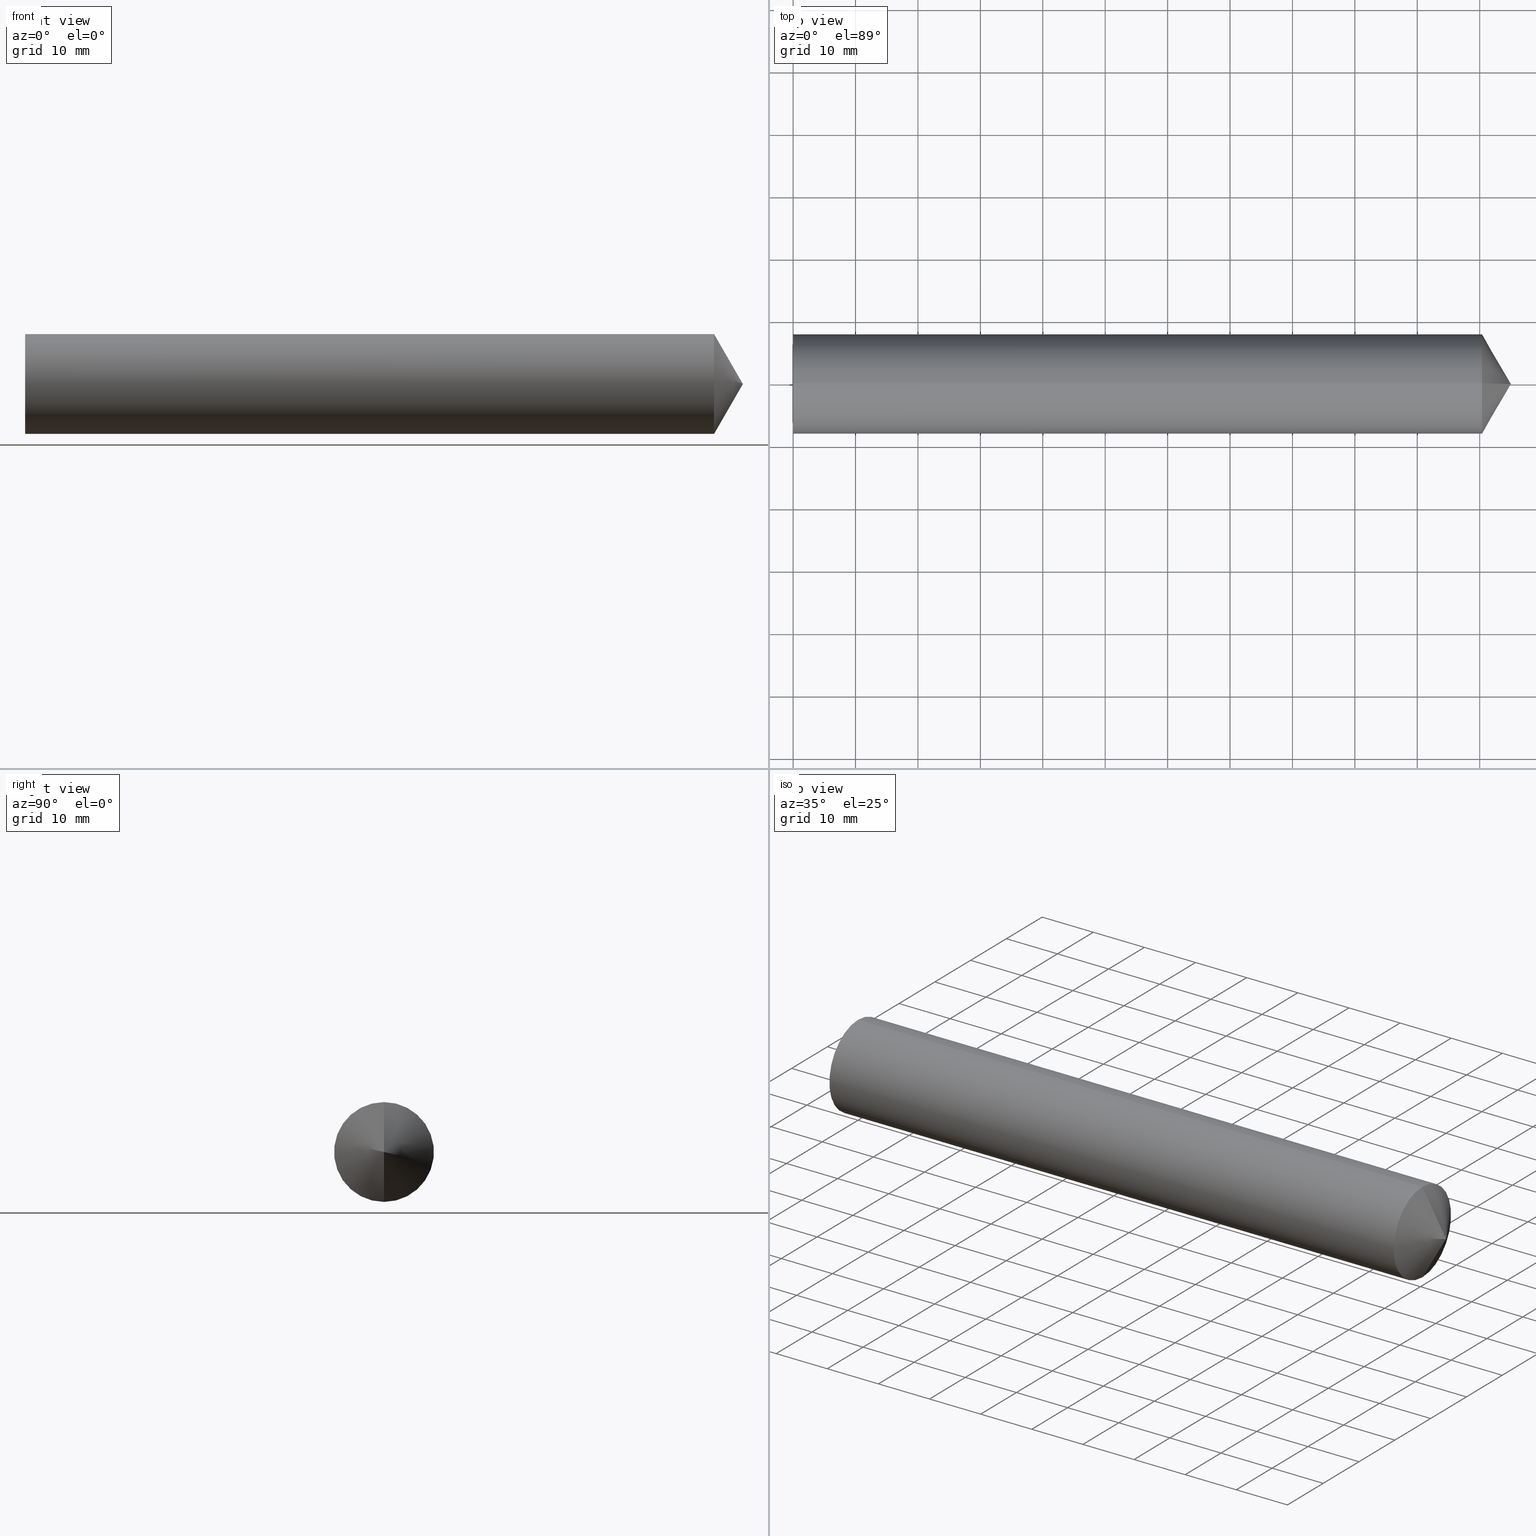
[diagram: canonical four-view strip — front | top / right | iso, engineering-drawing reading convention]
A machine part, canonical four-view strip (front | top / right | iso — engineering-drawing reading convention). The complete STEP part file that produces these views, byte-faithful:
ISO-10303-21;
HEADER;
FILE_DESCRIPTION (( 'STEP AP214' ),
    '1' );
FILE_NAME ('14426818.STEP',
    '2022-10-25T06:39:05',
    ( '' ),
    ( '' ),
    'SwSTEP 2.0',
    'SolidWorks 2017',
    '' );
FILE_SCHEMA (( 'AUTOMOTIVE_DESIGN' ));
ENDSEC;

DATA;
#1 = PRESENTATION_STYLE_ASSIGNMENT (( #145 ) ) ;
#2 = EDGE_CURVE ( 'NONE', #34, #6, #116, .T. ) ;
#3 = CARTESIAN_POINT ( 'NONE',  ( 0.0000000000000000000, 0.0000000000000000000, 0.0000000000000000000 ) ) ;
#4 = EDGE_CURVE ( 'NONE', #6, #164, #147, .T. ) ;
#5 = DIRECTION ( 'NONE',  ( 0.0000000000000000000, 0.0000000000000000000, 1.000000000000000000 ) ) ;
#6 = VERTEX_POINT ( 'NONE', #121 ) ;
#7 = DIRECTION ( 'NONE',  ( -1.000000000000000000, 0.0000000000000000000, -0.0000000000000000000 ) ) ;
#8 = APPLICATION_PROTOCOL_DEFINITION ( 'draft international standard', 'automotive_design', 1998, #162 ) ;
#9 = AXIS2_PLACEMENT_3D ( 'NONE', #87, #90, #63 ) ;
#10 = VECTOR ( 'NONE', #40, 1000.000000000000000 ) ;
#11 = EDGE_CURVE ( 'NONE', #48, #57, #79, .T. ) ;
#12 = CARTESIAN_POINT ( 'NONE',  ( 115.0000000000000100, -6.938893903907228400E-015, 0.0000000000000000000 ) ) ;
#13 = EDGE_CURVE ( 'NONE', #48, #34, #163, .T. ) ;
#14 = DIRECTION ( 'NONE',  ( 0.0000000000000000000, 0.0000000000000000000, 1.000000000000000000 ) ) ;
#15 = FACE_OUTER_BOUND ( 'NONE', #119, .T. ) ;
#16 = AXIS2_PLACEMENT_3D ( 'NONE', #80, #92, #5 ) ;
#17 = DIRECTION ( 'NONE',  ( -1.000000000000000000, -0.0000000000000000000, -0.0000000000000000000 ) ) ;
#18 =( NAMED_UNIT ( * ) SI_UNIT ( $, .STERADIAN. ) SOLID_ANGLE_UNIT ( ) );
#19 = EDGE_LOOP ( 'NONE', ( #157, #150, #140 ) ) ;
#20 =( LENGTH_UNIT ( ) NAMED_UNIT ( * ) SI_UNIT ( .MILLI., .METRE. ) );
#21 =( NAMED_UNIT ( * ) SI_UNIT ( $, .STERADIAN. ) SOLID_ANGLE_UNIT ( ) );
#22 = VECTOR ( 'NONE', #143, 1000.000000000000000 ) ;
#23 = CIRCLE ( 'NONE', #158, 8.000000000000000000 ) ;
#24 = EDGE_CURVE ( 'NONE', #164, #6, #23, .T. ) ;
#25 = ORIENTED_EDGE ( 'NONE', *, *, #59, .T. ) ;
#26 = CARTESIAN_POINT ( 'NONE',  ( -10.60077346251142700, 9.797174393178825700E-016, -8.000000000000000000 ) ) ;
#27 = CARTESIAN_POINT ( 'NONE',  ( 0.0000000000000000000, 0.0000000000000000000, 0.0000000000000000000 ) ) ;
#28 = ORIENTED_EDGE ( 'NONE', *, *, #29, .T. ) ;
#29 = EDGE_CURVE ( 'NONE', #57, #34, #138, .T. ) ;
#30 =( NAMED_UNIT ( * ) PLANE_ANGLE_UNIT ( ) SI_UNIT ( $, .RADIAN. ) );
#31 = DIRECTION ( 'NONE',  ( -1.000000000000000000, -0.0000000000000000000, -0.0000000000000000000 ) ) ;
#32 = PRODUCT ( '14426818', '14426818', '', ( #148 ) ) ;
#33 = FACE_OUTER_BOUND ( 'NONE', #19, .T. ) ;
#34 = VERTEX_POINT ( 'NONE', #142 ) ;
#35 = AXIS2_PLACEMENT_3D ( 'NONE', #132, #133, #107 ) ;
#36 = ORIENTED_EDGE ( 'NONE', *, *, #4, .F. ) ;
#37 = CARTESIAN_POINT ( 'NONE',  ( 110.3811978464830200, 9.797174393178825700E-016, -8.000000000000000000 ) ) ;
#38 = STYLED_ITEM ( 'NONE', ( #1 ), #120 ) ;
#39 = SHAPE_DEFINITION_REPRESENTATION ( #114, #120 ) ;
#40 = DIRECTION ( 'NONE',  ( -0.4999999999999995000, 0.0000000000000000000, 0.8660254037844389300 ) ) ;
#41 = DIRECTION ( 'NONE',  ( 0.0000000000000000000, 0.0000000000000000000, 1.000000000000000000 ) ) ;
#42 = CARTESIAN_POINT ( 'NONE',  ( -10.60077346251142700, 0.0000000000000000000, 0.0000000000000000000 ) ) ;
#43 = CONICAL_SURFACE ( 'NONE', #35, 8.000000000000000000, 1.047197551196598300 ) ;
#44 = CARTESIAN_POINT ( 'NONE',  ( 0.0000000000000000000, 0.0000000000000000000, 0.0000000000000000000 ) ) ;
#45 = AXIS2_PLACEMENT_3D ( 'NONE', #111, #17, #41 ) ;
#46 = ORIENTED_EDGE ( 'NONE', *, *, #24, .F. ) ;
#47 = PRODUCT_DEFINITION_FORMATION_WITH_SPECIFIED_SOURCE ( 'ANY', '', #32, .NOT_KNOWN. ) ;
#48 = VERTEX_POINT ( 'NONE', #12 ) ;
#49 = CARTESIAN_POINT ( 'NONE',  ( 110.3811978464830200, 9.797174393178825700E-016, -8.000000000000000000 ) ) ;
#50 = UNCERTAINTY_MEASURE_WITH_UNIT (LENGTH_MEASURE( 1.000000000000000100E-005 ), #20, 'distance_accuracy_value', 'NONE');
#51 = APPLICATION_PROTOCOL_DEFINITION ( 'draft international standard', 'automotive_design', 1998, #68 ) ;
#52 = ORIENTED_EDGE ( 'NONE', *, *, #11, .F. ) ;
#53 = PRESENTATION_LAYER_ASSIGNMENT (  '', '', ( #115 ) ) ;
#54 = DIRECTION ( 'NONE',  ( 1.000000000000000000, 0.0000000000000000000, 0.0000000000000000000 ) ) ;
#55 = CARTESIAN_POINT ( 'NONE',  ( 110.3811978464830200, 0.0000000000000000000, 0.0000000000000000000 ) ) ;
#56 = EDGE_LOOP ( 'NONE', ( #103, #28, #98, #46 ) ) ;
#57 = VERTEX_POINT ( 'NONE', #37 ) ;
#58 = ORIENTED_EDGE ( 'NONE', *, *, #2, .F. ) ;
#59 = EDGE_CURVE ( 'NONE', #57, #164, #129, .T. ) ;
#60 = SURFACE_STYLE_FILL_AREA ( #137 ) ;
#61 = DIRECTION ( 'NONE',  ( -1.000000000000000000, -0.0000000000000000000, -0.0000000000000000000 ) ) ;
#62 = VECTOR ( 'NONE', #64, 1000.000000000000000 ) ;
#63 = DIRECTION ( 'NONE',  ( 0.0000000000000000000, 0.0000000000000000000, 1.000000000000000000 ) ) ;
#64 = DIRECTION ( 'NONE',  ( -1.000000000000000000, -0.0000000000000000000, -0.0000000000000000000 ) ) ;
#65 = SURFACE_SIDE_STYLE ('',( #60 ) ) ;
#66 =( LENGTH_UNIT ( ) NAMED_UNIT ( * ) SI_UNIT ( .MILLI., .METRE. ) );
#67 = CYLINDRICAL_SURFACE ( 'NONE', #45, 8.000000000000000000 ) ;
#68 = APPLICATION_CONTEXT ( 'automotive_design' ) ;
#69 = CLOSED_SHELL ( 'NONE', ( #99, #113, #74, #71, #72 ) ) ;
#70 = CONICAL_SURFACE ( 'NONE', #96, 8.000000000000000000, 1.047197551196598300 ) ;
#71 = ADVANCED_FACE ( 'NONE', ( #75 ), #43, .T. ) ;
#72 = ADVANCED_FACE ( 'NONE', ( #85 ), #83, .T. ) ;
#73 =( GEOMETRIC_REPRESENTATION_CONTEXT ( 3 ) GLOBAL_UNCERTAINTY_ASSIGNED_CONTEXT ( ( #156 ) ) GLOBAL_UNIT_ASSIGNED_CONTEXT ( ( #66, #160, #21 ) ) REPRESENTATION_CONTEXT ( 'NONE', 'WORKASPACE' ) );
#74 = ADVANCED_FACE ( 'NONE', ( #15 ), #159, .T. ) ;
#75 = FACE_OUTER_BOUND ( 'NONE', #149, .T. ) ;
#76 = AXIS2_PLACEMENT_3D ( 'NONE', #141, #61, #77 ) ;
#77 = DIRECTION ( 'NONE',  ( 0.0000000000000000000, 0.0000000000000000000, 1.000000000000000000 ) ) ;
#78 = SURFACE_SIDE_STYLE ('',( #151 ) ) ;
#79 = LINE ( 'NONE', #49, #22 ) ;
#80 = CARTESIAN_POINT ( 'NONE',  ( 110.3811978464830200, 0.0000000000000000000, 0.0000000000000000000 ) ) ;
#81 =( GEOMETRIC_REPRESENTATION_CONTEXT ( 3 ) GLOBAL_UNCERTAINTY_ASSIGNED_CONTEXT ( ( #97 ) ) GLOBAL_UNIT_ASSIGNED_CONTEXT ( ( #110, #30, #124 ) ) REPRESENTATION_CONTEXT ( 'NONE', 'WORKASPACE' ) );
#82 = ORIENTED_EDGE ( 'NONE', *, *, #24, .T. ) ;
#83 = CYLINDRICAL_SURFACE ( 'NONE', #101, 8.000000000000000000 ) ;
#84 = MECHANICAL_DESIGN_GEOMETRIC_PRESENTATION_REPRESENTATION (  '', ( #115 ), #73 ) ;
#85 = FACE_OUTER_BOUND ( 'NONE', #56, .T. ) ;
#86 = MANIFOLD_SOLID_BREP ( 'Rotation3', #69 ) ;
#87 = CARTESIAN_POINT ( 'NONE',  ( 0.0000000000000000000, 0.0000000000000000000, 0.0000000000000000000 ) ) ;
#88 = CARTESIAN_POINT ( 'NONE',  ( 110.3811978464830200, 0.0000000000000000000, 8.000000000000000000 ) ) ;
#89 = COLOUR_RGB ( '',0.7921568627450980000, 0.8196078431372548800, 0.9333333333333333500 ) ;
#90 = DIRECTION ( 'NONE',  ( -1.000000000000000000, -0.0000000000000000000, -0.0000000000000000000 ) ) ;
#91 = FILL_AREA_STYLE_COLOUR ( '', #89 ) ;
#92 = DIRECTION ( 'NONE',  ( -1.000000000000000000, -0.0000000000000000000, -0.0000000000000000000 ) ) ;
#93 = DIRECTION ( 'NONE',  ( 0.0000000000000000000, 0.0000000000000000000, 1.000000000000000000 ) ) ;
#94 = CIRCLE ( 'NONE', #16, 8.000000000000000000 ) ;
#95 = EDGE_LOOP ( 'NONE', ( #127, #25, #36, #58 ) ) ;
#96 = AXIS2_PLACEMENT_3D ( 'NONE', #55, #31, #93 ) ;
#97 = UNCERTAINTY_MEASURE_WITH_UNIT (LENGTH_MEASURE( 1.000000000000000100E-005 ), #110, 'distance_accuracy_value', 'NONE');
#98 = ORIENTED_EDGE ( 'NONE', *, *, #2, .T. ) ;
#99 = ADVANCED_FACE ( 'NONE', ( #100 ), #67, .T. ) ;
#100 = FACE_OUTER_BOUND ( 'NONE', #95, .T. ) ;
#101 = AXIS2_PLACEMENT_3D ( 'NONE', #42, #123, #122 ) ;
#102 = COLOUR_RGB ( '',0.7921568627450980000, 0.8196078431372548800, 0.9333333333333333500 ) ;
#103 = ORIENTED_EDGE ( 'NONE', *, *, #59, .F. ) ;
#104 = ORIENTED_EDGE ( 'NONE', *, *, #4, .T. ) ;
#105 =( GEOMETRIC_REPRESENTATION_CONTEXT ( 3 ) GLOBAL_UNCERTAINTY_ASSIGNED_CONTEXT ( ( #50 ) ) GLOBAL_UNIT_ASSIGNED_CONTEXT ( ( #20, #146, #18 ) ) REPRESENTATION_CONTEXT ( 'NONE', 'WORKASPACE' ) );
#106 = FILL_AREA_STYLE_COLOUR ( '', #102 ) ;
#107 = DIRECTION ( 'NONE',  ( 0.0000000000000000000, 0.0000000000000000000, 1.000000000000000000 ) ) ;
#108 = AXIS2_PLACEMENT_3D ( 'NONE', #3, #7, #134 ) ;
#109 = SURFACE_STYLE_USAGE ( .BOTH. , #78 ) ;
#110 =( LENGTH_UNIT ( ) NAMED_UNIT ( * ) SI_UNIT ( .MILLI., .METRE. ) );
#111 = CARTESIAN_POINT ( 'NONE',  ( -10.60077346251142700, 0.0000000000000000000, 0.0000000000000000000 ) ) ;
#112 = PRESENTATION_STYLE_ASSIGNMENT (( #109 ) ) ;
#113 = ADVANCED_FACE ( 'NONE', ( #33 ), #70, .T. ) ;
#114 = PRODUCT_DEFINITION_SHAPE ( 'NONE', 'NONE',  #126 ) ;
#115 = STYLED_ITEM ( 'NONE', ( #112 ), #86 ) ;
#116 = LINE ( 'NONE', #154, #62 ) ;
#117 = DIRECTION ( 'NONE',  ( -1.000000000000000000, -0.0000000000000000000, -0.0000000000000000000 ) ) ;
#118 = DIRECTION ( 'NONE',  ( -1.000000000000000000, -0.0000000000000000000, -0.0000000000000000000 ) ) ;
#119 = EDGE_LOOP ( 'NONE', ( #104, #82 ) ) ;
#120 = ADVANCED_BREP_SHAPE_REPRESENTATION ( '14426818', ( #86, #128 ), #105 ) ;
#121 = CARTESIAN_POINT ( 'NONE',  ( 0.0000000000000000000, 0.0000000000000000000, 8.000000000000000000 ) ) ;
#122 = DIRECTION ( 'NONE',  ( 0.0000000000000000000, 0.0000000000000000000, 1.000000000000000000 ) ) ;
#123 = DIRECTION ( 'NONE',  ( -1.000000000000000000, -0.0000000000000000000, -0.0000000000000000000 ) ) ;
#124 =( NAMED_UNIT ( * ) SI_UNIT ( $, .STERADIAN. ) SOLID_ANGLE_UNIT ( ) );
#125 = CARTESIAN_POINT ( 'NONE',  ( 0.0000000000000000000, 9.797174393178825700E-016, -8.000000000000000000 ) ) ;
#126 = PRODUCT_DEFINITION ( 'UNKNOWN', '', #47, #152 ) ;
#127 = ORIENTED_EDGE ( 'NONE', *, *, #139, .T. ) ;
#128 = AXIS2_PLACEMENT_3D ( 'NONE', #44, #135, #54 ) ;
#129 = LINE ( 'NONE', #26, #155 ) ;
#130 = PRODUCT_RELATED_PRODUCT_CATEGORY ( 'part', '', ( #32 ) ) ;
#131 = ORIENTED_EDGE ( 'NONE', *, *, #29, .F. ) ;
#132 = CARTESIAN_POINT ( 'NONE',  ( 110.3811978464830200, 0.0000000000000000000, 0.0000000000000000000 ) ) ;
#133 = DIRECTION ( 'NONE',  ( -1.000000000000000000, -0.0000000000000000000, -0.0000000000000000000 ) ) ;
#134 = DIRECTION ( 'NONE',  ( -0.0000000000000000000, 0.0000000000000000000, 1.000000000000000000 ) ) ;
#135 = DIRECTION ( 'NONE',  ( 0.0000000000000000000, 0.0000000000000000000, 1.000000000000000000 ) ) ;
#136 = PRESENTATION_LAYER_ASSIGNMENT (  '', '', ( #38 ) ) ;
#137 = FILL_AREA_STYLE ('',( #106 ) ) ;
#138 = CIRCLE ( 'NONE', #76, 8.000000000000000000 ) ;
#139 = EDGE_CURVE ( 'NONE', #34, #57, #94, .T. ) ;
#140 = ORIENTED_EDGE ( 'NONE', *, *, #139, .F. ) ;
#141 = CARTESIAN_POINT ( 'NONE',  ( 110.3811978464830200, 0.0000000000000000000, 0.0000000000000000000 ) ) ;
#142 = CARTESIAN_POINT ( 'NONE',  ( 110.3811978464830200, 0.0000000000000000000, 8.000000000000000000 ) ) ;
#143 = DIRECTION ( 'NONE',  ( -0.4999999999999995000, 1.060575238724907300E-016, -0.8660254037844389300 ) ) ;
#144 = FILL_AREA_STYLE ('',( #91 ) ) ;
#145 = SURFACE_STYLE_USAGE ( .BOTH. , #65 ) ;
#146 =( NAMED_UNIT ( * ) PLANE_ANGLE_UNIT ( ) SI_UNIT ( $, .RADIAN. ) );
#147 = CIRCLE ( 'NONE', #9, 8.000000000000000000 ) ;
#148 = PRODUCT_CONTEXT ( 'NONE', #162, 'mechanical' ) ;
#149 = EDGE_LOOP ( 'NONE', ( #52, #153, #131 ) ) ;
#150 = ORIENTED_EDGE ( 'NONE', *, *, #11, .T. ) ;
#151 = SURFACE_STYLE_FILL_AREA ( #144 ) ;
#152 = PRODUCT_DEFINITION_CONTEXT ( 'detailed design', #68, 'design' ) ;
#153 = ORIENTED_EDGE ( 'NONE', *, *, #13, .T. ) ;
#154 = CARTESIAN_POINT ( 'NONE',  ( -10.60077346251142700, 0.0000000000000000000, 8.000000000000000000 ) ) ;
#155 = VECTOR ( 'NONE', #118, 1000.000000000000000 ) ;
#156 = UNCERTAINTY_MEASURE_WITH_UNIT (LENGTH_MEASURE( 1.000000000000000100E-005 ), #66, 'distance_accuracy_value', 'NONE');
#157 = ORIENTED_EDGE ( 'NONE', *, *, #13, .F. ) ;
#158 = AXIS2_PLACEMENT_3D ( 'NONE', #27, #117, #14 ) ;
#159 = PLANE ( 'NONE',  #108 ) ;
#160 =( NAMED_UNIT ( * ) PLANE_ANGLE_UNIT ( ) SI_UNIT ( $, .RADIAN. ) );
#161 = MECHANICAL_DESIGN_GEOMETRIC_PRESENTATION_REPRESENTATION (  '', ( #38 ), #81 ) ;
#162 = APPLICATION_CONTEXT ( 'automotive_design' ) ;
#163 = LINE ( 'NONE', #88, #10 ) ;
#164 = VERTEX_POINT ( 'NONE', #125 ) ;
ENDSEC;
END-ISO-10303-21;
